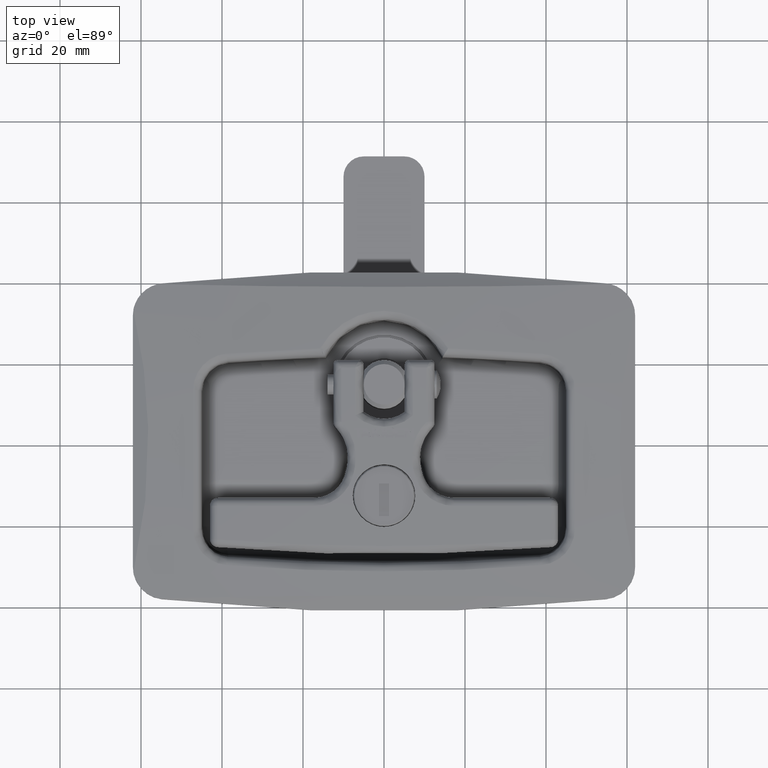
[diagram: clean part render]
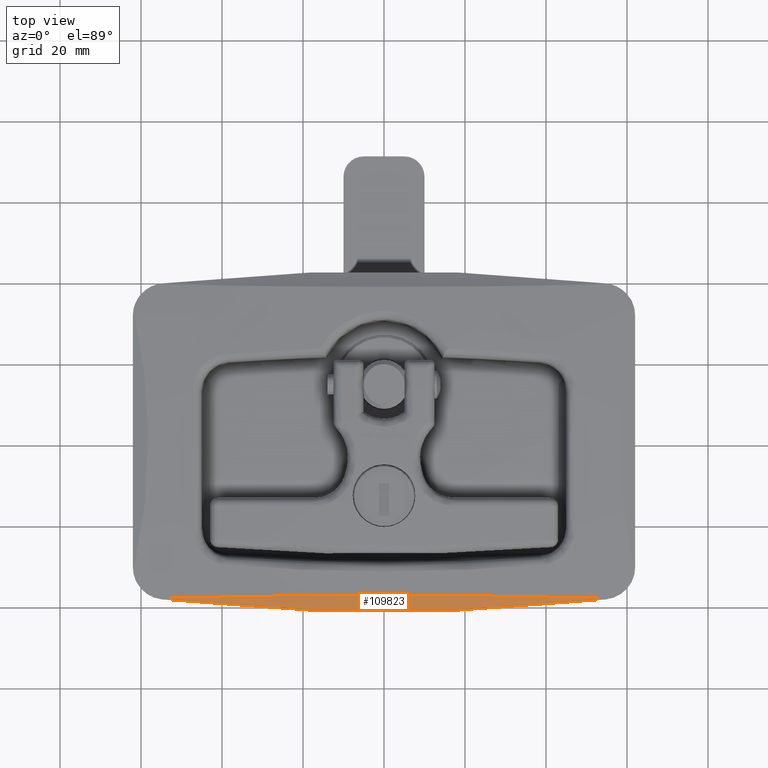
[diagram: same view with one face highlighted and labeled with its STEP entity id]
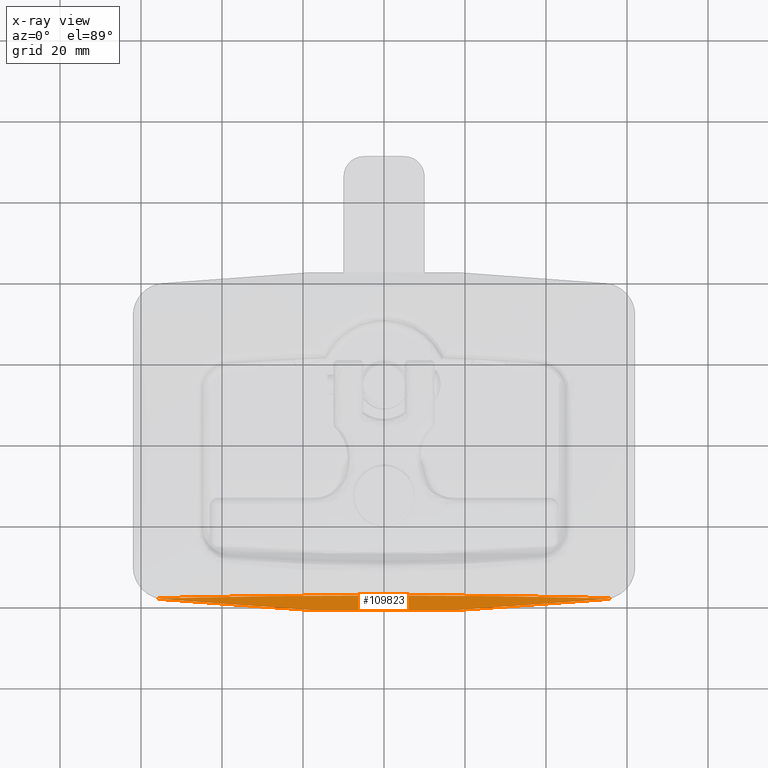
[diagram: x-ray of the same camera — body ghosted, the highlighted face saturated]
A machine part, top view. The second image highlights one B-rep face of the part: STEP entity #109823.
The next image is the same camera in x-ray: the body ghosted, the highlighted face saturated — about 0% of this face is hidden behind the body in this view.
In plain terms, the highlighted conical surface has half-angle 62.301 deg.
Its self-contained STEP definition (entity closure, byte-faithful):
#830 = CARTESIAN_POINT ( 'NONE',  ( -54.87804878048790900, -38.97927498241460100, -3.499999999999992900 ) ) ;
#831 = DIRECTION ( 'NONE',  ( 1.000000000000000000, 0.0000000000000000000, 0.0000000000000000000 ) ) ;
#832 = DIRECTION ( 'NONE',  ( 0.0000000000000000000, 0.0000000000000000000, 1.000000000000000000 ) ) ;
#833 = CARTESIAN_POINT ( 'NONE',  ( 0.0000000000000000000, 458.0000000000000000, -3.499999999999992900 ) ) ;
#834 = AXIS2_PLACEMENT_3D ( 'NONE', #833, #832, #831 ) ;
#835 = CIRCLE ( 'NONE', #834, 500.0000000000000000 ) ;
#836 = CARTESIAN_POINT ( 'NONE',  ( 54.87804878048782300, -38.97927498241460100, -3.499999999999992900 ) ) ;
#902 = CARTESIAN_POINT ( 'NONE',  ( -54.87804878048790900, -38.97927498241460100, -3.499999999999992900 ) ) ;
#903 = CARTESIAN_POINT ( 'NONE',  ( -55.21913839019911300, -38.94161077148555000, -3.499999999999963600 ) ) ;
#904 = CARTESIAN_POINT ( 'NONE',  ( -55.55562803633828400, -38.88233190324606900, -3.488641234016925300 ) ) ;
#905 = CARTESIAN_POINT ( 'NONE',  ( -55.88758022948058400, -38.80173295658985200, -3.466074141290960600 ) ) ;
#906 = B_SPLINE_CURVE_WITH_KNOTS ( 'NONE', 3,
 ( #905, #904, #903, #902 ),
 .UNSPECIFIED., .F., .F.,
 ( 4, 4 ),
 ( 0.003145339528049353000, 0.004168227591235637700 ),
 .UNSPECIFIED. ) ;
#917 = CARTESIAN_POINT ( 'NONE',  ( 55.88758022948036300, -38.80173295658967400, -3.466074141290880700 ) ) ;
#918 = CARTESIAN_POINT ( 'NONE',  ( 55.55612408122177500, -38.88221146212252700, -3.488607511417355600 ) ) ;
#919 = CARTESIAN_POINT ( 'NONE',  ( 55.21965195031460600, -38.94155406252708900, -3.499999999999977400 ) ) ;
#920 = CARTESIAN_POINT ( 'NONE',  ( 54.87804878048782300, -38.97927498241460100, -3.499999999999992900 ) ) ;
#922 = B_SPLINE_CURVE_WITH_KNOTS ( 'NONE', 3,
 ( #920, #919, #918, #917 ),
 .UNSPECIFIED., .F., .F.,
 ( 4, 4 ),
 ( 0.0004482593726049866900, 0.001473132219044784100 ),
 .UNSPECIFIED. ) ;
#83760 = DIRECTION ( 'NONE',  ( -1.000000000000000000, 0.0000000000000000000, 0.0000000000000000000 ) ) ;
#83761 = DIRECTION ( 'NONE',  ( 0.0000000000000000000, 0.0000000000000000000, -1.000000000000000000 ) ) ;
#83762 = AXIS2_PLACEMENT_3D ( 'NONE', #83770, #83761, #83760 ) ;
#83764 = CONICAL_SURFACE ( 'NONE', #83762, 500.0000000000000000, 1.087349325227698400 ) ;
#83765 = FACE_OUTER_BOUND ( 'NONE', #109824, .T. ) ;
#83770 = CARTESIAN_POINT ( 'NONE',  ( 0.0000000000000000000, 458.0000000000000000, -3.499999999999992900 ) ) ;
#93427 = VERTEX_POINT ( 'NONE', #145823 ) ;
#93457 = EDGE_CURVE ( 'NONE', #93458, #93427, #145962, .T. ) ;
#93458 = VERTEX_POINT ( 'NONE', #145961 ) ;
#93502 = EDGE_CURVE ( 'NONE', #93503, #93458, #146141, .T. ) ;
#93503 = VERTEX_POINT ( 'NONE', #146140 ) ;
#94655 = VERTEX_POINT ( 'NONE', #836 ) ;
#94657 = EDGE_CURVE ( 'NONE', #94658, #94655, #835, .T. ) ;
#94658 = VERTEX_POINT ( 'NONE', #830 ) ;
#94695 = EDGE_CURVE ( 'NONE', #93427, #94658, #906, .T. ) ;
#94710 = EDGE_CURVE ( 'NONE', #94655, #93503, #922, .T. ) ;
#109804 = ORIENTED_EDGE ( 'NONE', *, *, #94695, .T. ) ;
#109805 = ORIENTED_EDGE ( 'NONE', *, *, #94657, .T. ) ;
#109823 = ADVANCED_FACE ( 'NONE', ( #83765 ), #83764, .T. ) ;
#109824 = EDGE_LOOP ( 'NONE', ( #109825, #109826, #109827, #109804, #109805 ) ) ;
#109825 = ORIENTED_EDGE ( 'NONE', *, *, #94710, .T. ) ;
#109826 = ORIENTED_EDGE ( 'NONE', *, *, #93502, .T. ) ;
#109827 = ORIENTED_EDGE ( 'NONE', *, *, #93457, .T. ) ;
#145823 = CARTESIAN_POINT ( 'NONE',  ( -55.88758022948058400, -38.80173295658985200, -3.466074141290960600 ) ) ;
#145954 = CARTESIAN_POINT ( 'NONE',  ( -55.88758022948058400, -38.80173295658985200, -3.466074141290960600 ) ) ;
#145955 = CARTESIAN_POINT ( 'NONE',  ( -46.57298352457057400, -38.56084984348825600, -2.793733757487300500 ) ) ;
#145956 = CARTESIAN_POINT ( 'NONE',  ( -37.25838681966055800, -38.38760143681419400, -2.291012900886133100 ) ) ;
#145957 = CARTESIAN_POINT ( 'NONE',  ( -18.62919340984051800, -38.15853076742667600, -1.621108272473309500 ) ) ;
#145958 = CARTESIAN_POINT ( 'NONE',  ( -9.314596704930494300, -38.10272710542235300, -1.453931730346941700 ) ) ;
#145959 = CARTESIAN_POINT ( 'NONE',  ( -2.047402492630606100E-011, -38.10272710542255900, -1.453931730346836400 ) ) ;
#145961 = CARTESIAN_POINT ( 'NONE',  ( -2.047402492630606100E-011, -38.10272710542255900, -1.453931730346836400 ) ) ;
#145962 = B_SPLINE_CURVE_WITH_KNOTS ( 'NONE', 3,
 ( #145959, #145958, #145957, #145956, #145955, #145954 ),
 .UNSPECIFIED., .F., .F.,
 ( 4, 2, 4 ),
 ( 0.05635835711512034900, 0.08430214722985041000, 0.1122459373445804700 ),
 .UNSPECIFIED. ) ;
#146134 = CARTESIAN_POINT ( 'NONE',  ( -2.047402492630606100E-011, -38.10272710542255900, -1.453931730346836400 ) ) ;
#146135 = CARTESIAN_POINT ( 'NONE',  ( 9.314596704896336700, -38.10272710542217600, -1.453931730346451000 ) ) ;
#146136 = CARTESIAN_POINT ( 'NONE',  ( 18.62919340981314400, -38.15853076742615700, -1.621108272472437300 ) ) ;
#146137 = CARTESIAN_POINT ( 'NONE',  ( 37.25838681964675900, -38.38760143681365400, -2.291012900885255100 ) ) ;
#146138 = CARTESIAN_POINT ( 'NONE',  ( 46.57298352456356100, -38.56084984348826300, -2.793733757486870600 ) ) ;
#146139 = CARTESIAN_POINT ( 'NONE',  ( 55.88758022948036300, -38.80173295658967400, -3.466074141290880700 ) ) ;
#146140 = CARTESIAN_POINT ( 'NONE',  ( 55.88758022948036300, -38.80173295658967400, -3.466074141290880700 ) ) ;
#146141 = B_SPLINE_CURVE_WITH_KNOTS ( 'NONE', 3,
 ( #146139, #146138, #146137, #146136, #146135, #146134 ),
 .UNSPECIFIED., .F., .F.,
 ( 4, 2, 4 ),
 ( 0.0004707768856195074800, 0.02841456700036993500, 0.05635835711512034900 ),
 .UNSPECIFIED. ) ;